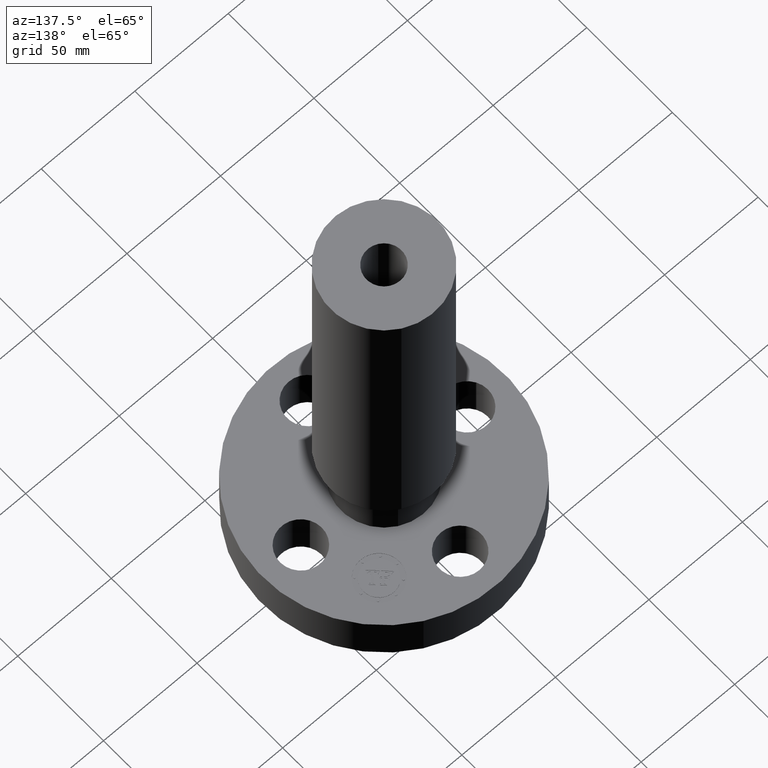
[diagram: clean part render]
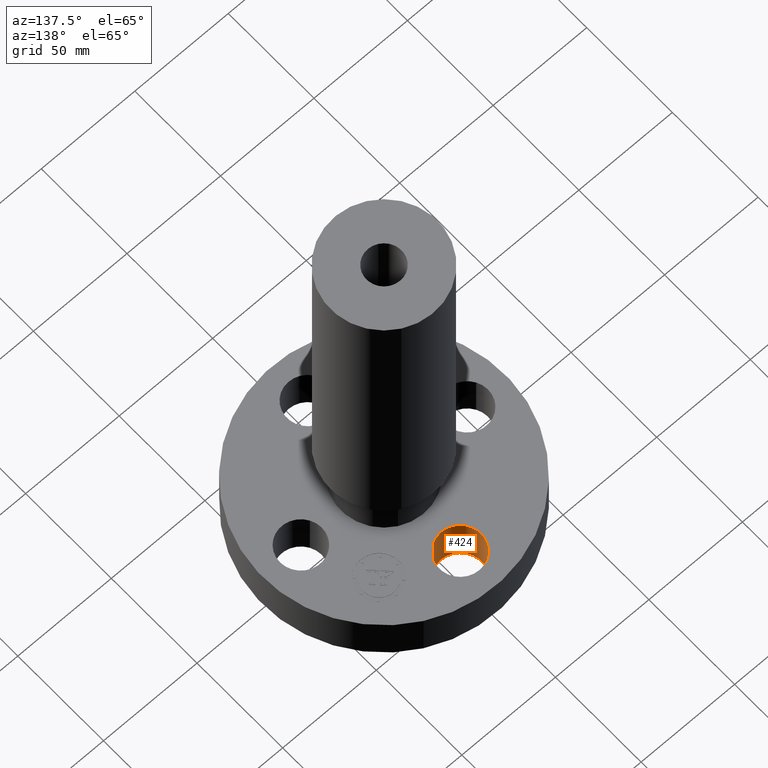
[diagram: same view with one face highlighted and labeled with its STEP entity id]
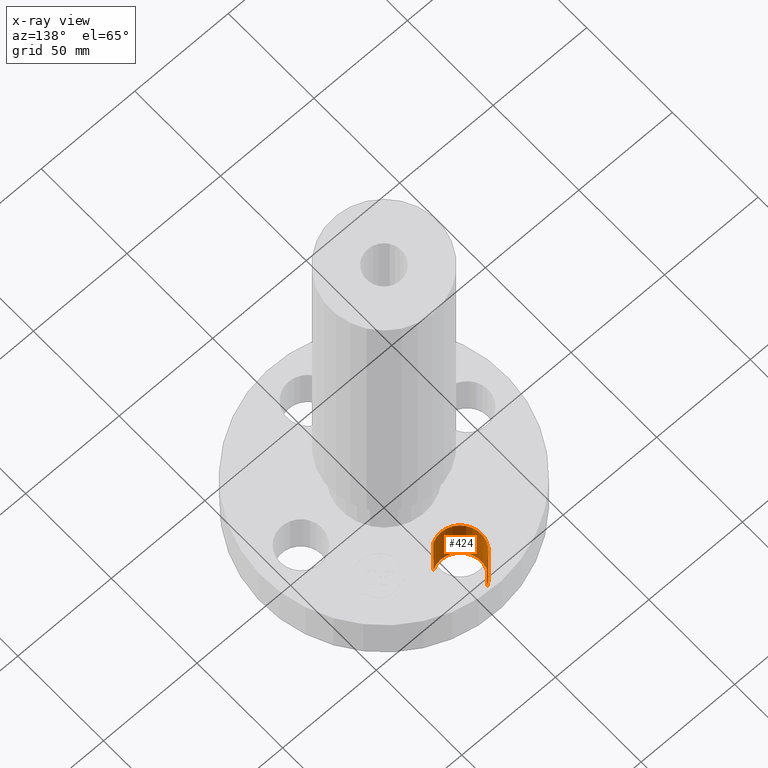
[diagram: x-ray of the same camera — body ghosted, the highlighted face saturated]
A machine part, auxiliary view. The second image highlights one B-rep face of the part: STEP entity #424.
The next image is the same camera in x-ray: the body ghosted, the highlighted face saturated — about 0% of this face is hidden behind the body in this view.
In plain terms, the highlighted cylindrical surface (edge-blend (fillet) strip) has radius 11.176 mm, axis along (0, 0, 1).
Its self-contained STEP definition (entity closure, byte-faithful):
#175=AXIS2_PLACEMENT_3D('Circle Axis2P3D',#173,#174,$) ;
#385=AXIS2_PLACEMENT_3D('Cylinder Axis2P3D',#382,#383,#384) ;
#415=AXIS2_PLACEMENT_3D('Circle Axis2P3D',#413,#414,$) ;
#173=CARTESIAN_POINT('Axis2P3D Location',(-3.1470888887E-016,1.75000000001,1.)) ;
#177=CARTESIAN_POINT('Vertex',(0.210947236987,1.36386367277,1.)) ;
#179=CARTESIAN_POINT('Vertex',(-0.210947236987,2.13613632724,1.)) ;
#382=CARTESIAN_POINT('Axis2P3D Location',(-3.21469784777E-016,1.75000000001,0.00393700787402)) ;
#387=CARTESIAN_POINT('Line Origine',(0.210947236987,1.36386367277,0.500000000002)) ;
#391=CARTESIAN_POINT('Vertex',(0.210947236987,1.36386367277,2.2401153548E-016)) ;
#394=CARTESIAN_POINT('Line Origine',(-0.210947236987,2.13613632724,0.500000000002)) ;
#398=CARTESIAN_POINT('Vertex',(-0.210947236987,2.13613632724,2.2401153548E-016)) ;
#413=CARTESIAN_POINT('Axis2P3D Location',(-3.21469784777E-016,1.75000000001,0.)) ;
#174=DIRECTION('Axis2P3D Direction',(0.,0.,-0.0393700787402)) ;
#383=DIRECTION('Axis2P3D Direction',(0.,0.,0.0393700787402)) ;
#384=DIRECTION('Axis2P3D XDirection',(-0.0188750212049,0.0345504945626,0.)) ;
#388=DIRECTION('Vector Direction',(0.,0.,0.0393700787402)) ;
#395=DIRECTION('Vector Direction',(0.,0.,0.0393700787402)) ;
#414=DIRECTION('Axis2P3D Direction',(0.,0.,0.0393700787402)) ;
#389=VECTOR('Line Direction',#388,0.0393700787402) ;
#396=VECTOR('Line Direction',#395,0.0393700787402) ;
#419=ORIENTED_EDGE('',*,*,#400,.F.) ;
#420=ORIENTED_EDGE('',*,*,#181,.F.) ;
#421=ORIENTED_EDGE('',*,*,#393,.T.) ;
#422=ORIENTED_EDGE('',*,*,#417,.T.) ;
#424=ADVANCED_FACE('PartBody',(#423),#386,.F.) ;
#176=CIRCLE('generated circle',#175,0.440000000002) ;
#416=CIRCLE('generated circle',#415,0.440000000002) ;
#386=CYLINDRICAL_SURFACE('generated cylinder',#385,0.440000000002) ;
#181=EDGE_CURVE('',#178,#180,#176,.T.) ;
#393=EDGE_CURVE('',#178,#392,#390,.F.) ;
#400=EDGE_CURVE('',#180,#399,#397,.F.) ;
#417=EDGE_CURVE('',#392,#399,#416,.F.) ;
#418=EDGE_LOOP('',(#419,#420,#421,#422)) ;
#423=FACE_OUTER_BOUND('',#418,.T.) ;
#390=LINE('Line',#387,#389) ;
#397=LINE('Line',#394,#396) ;
#178=VERTEX_POINT('',#177) ;
#180=VERTEX_POINT('',#179) ;
#392=VERTEX_POINT('',#391) ;
#399=VERTEX_POINT('',#398) ;